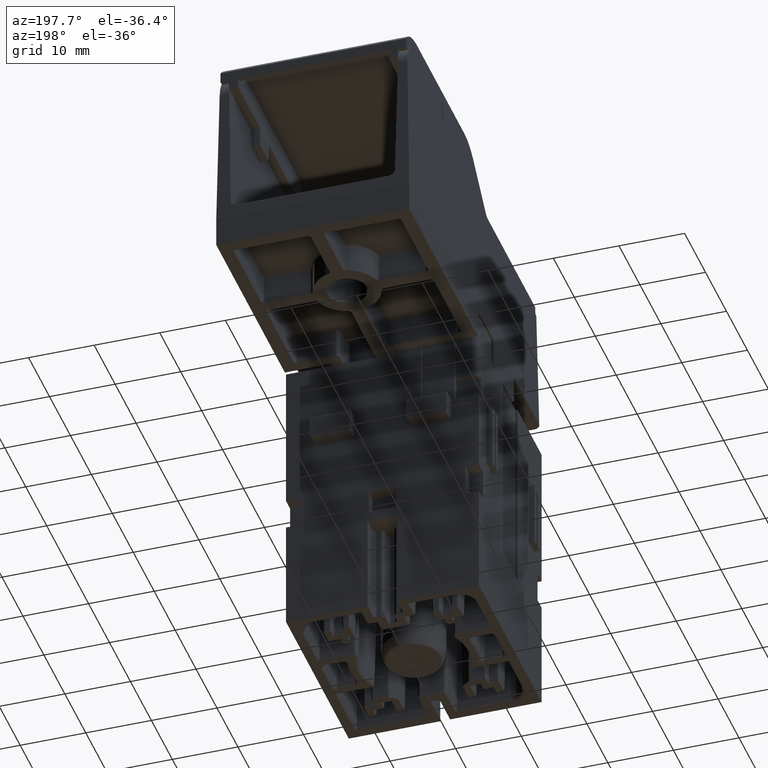
[diagram: clean part render]
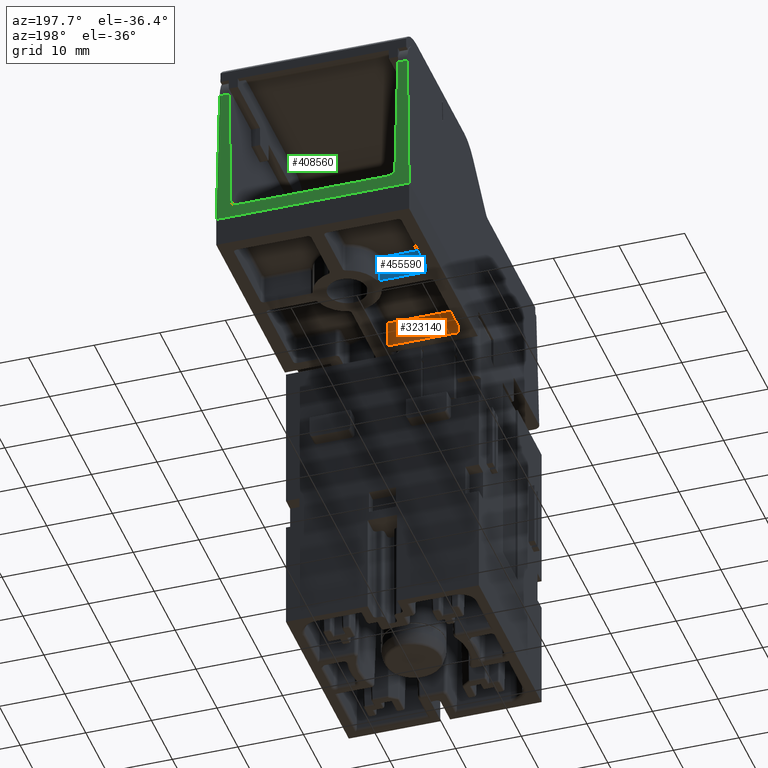
[diagram: same view with three faces highlighted in distinct colors, each labeled with its STEP entity id]
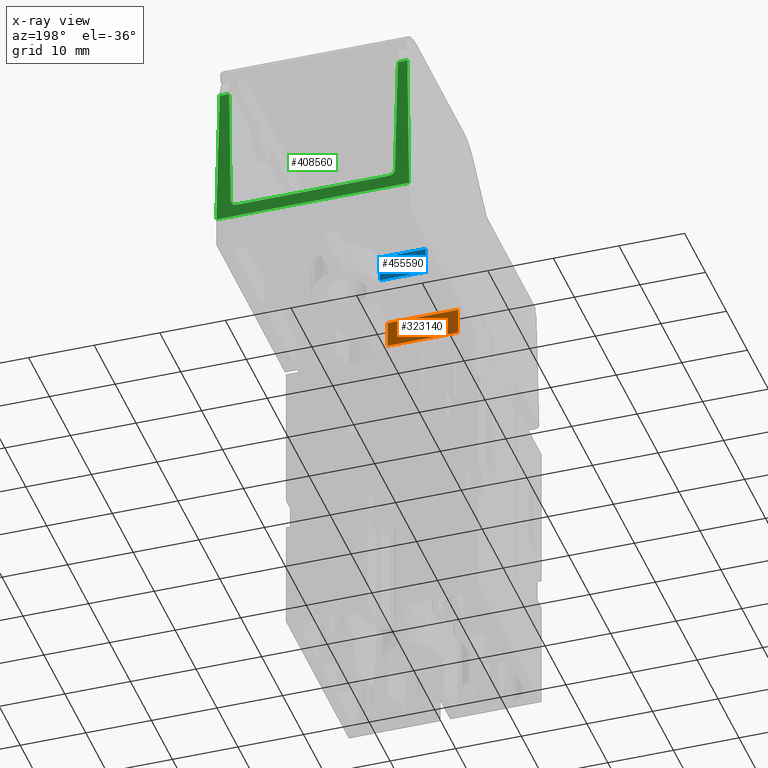
[diagram: x-ray of the same camera — body ghosted, the three highlighted faces saturated]
A machine part, auxiliary view with three faces highlighted in distinct colors.
The next image is the same camera in x-ray (body ghosted, the three faces saturated) — at least one of them is partly hidden behind the body in this view.
Their STEP definitions:

[orange] entity #323140 — the highlighted planar face has unit normal (-0, 1, -0).
#286740=CARTESIAN_POINT('',(126.959783000015,57.2000000000071,
31.5000000000003));
#286750=VERTEX_POINT('',#286740);
#288610=CARTESIAN_POINT('',(119.385828644772,57.2000000000071,
31.5000000000003));
#288620=DIRECTION('',(-1.,4.89858719658942E-16,-7.63116439681149E-31));
#288630=VECTOR('',#288620,1.);
#288640=LINE('',#288610,#288630);
#288650=CARTESIAN_POINT('',(116.209783,57.2000000000071,31.5000000000003
));
#288660=VERTEX_POINT('',#288650);
#288670=EDGE_CURVE('',#286750,#288660,#288640,.T.);
#322840=CARTESIAN_POINT('',(119.385828644772,57.2000000000071,
35.6000000000008));
#322850=DIRECTION('',(4.89858719658942E-16,1.,-2.161723853515E-15));
#322860=DIRECTION('',(-1.,4.89858719658942E-16,-6.64508826528523E-31));
#322870=AXIS2_PLACEMENT_3D('',#322840,#322850,#322860);
#322880=PLANE('',#322870);
#322890=CARTESIAN_POINT('',(126.959783000015,57.2000000000071,
31.0000000000003));
#322900=DIRECTION('',(2.75880635163948E-45,2.161723853515E-15,1.));
#322910=VECTOR('',#322900,1.);
#322920=LINE('',#322890,#322910);
#322930=CARTESIAN_POINT('',(126.959783000015,57.2000000000071,
35.6000000000007));
#322940=VERTEX_POINT('',#322930);
#322950=EDGE_CURVE('',#286750,#322940,#322920,.T.);
#322960=ORIENTED_EDGE('',*,*,#322950,.F.);
#322970=CARTESIAN_POINT('',(119.385828644772,57.2000000000071,
35.6000000000007));
#322980=DIRECTION('',(1.,-4.89858719658942E-16,1.06044593939015E-30));
#322990=VECTOR('',#322980,1.);
#323000=LINE('',#322970,#322990);
#323010=CARTESIAN_POINT('',(116.209783,57.2000000000071,35.6000000000007
));
#323020=VERTEX_POINT('',#323010);
#323030=EDGE_CURVE('',#323020,#322940,#323000,.T.);
#323040=ORIENTED_EDGE('',*,*,#323030,.T.);
#323050=CARTESIAN_POINT('',(116.209783,57.2000000000071,31.0000000000003
));
#323060=DIRECTION('',(2.75880635163948E-45,2.161723853515E-15,1.));
#323070=VECTOR('',#323060,1.);
#323080=LINE('',#323050,#323070);
#323090=EDGE_CURVE('',#288660,#323020,#323080,.T.);
#323100=ORIENTED_EDGE('',*,*,#323090,.T.);
#323110=ORIENTED_EDGE('',*,*,#288670,.T.);
#323120=EDGE_LOOP('',(#323110,#323100,#323040,#322960));
#323130=FACE_OUTER_BOUND('',#323120,.T.);
#323140=ADVANCED_FACE('',(#323130),#322880,.T.);

[blue] entity #455590 — the highlighted planar face has unit normal (-0, -1, 0).
#267030=CARTESIAN_POINT('',(120.001285622129,72.7999999999993,
31.5000000000002));
#267040=VERTEX_POINT('',#267030);
#267070=CARTESIAN_POINT('',(120.001285622129,72.7999999999993,
35.6000000000007));
#267080=DIRECTION('',(3.94430452610506E-31,2.16172385351495E-15,1.));
#267090=VECTOR('',#267080,1.);
#267100=LINE('',#267070,#267090);
#267110=CARTESIAN_POINT('',(120.001285622129,72.7999999999993,
35.6000000000007));
#267120=VERTEX_POINT('',#267110);
#267130=EDGE_CURVE('',#267040,#267120,#267100,.T.);
#286420=CARTESIAN_POINT('',(126.959783000015,72.7999999999993,
31.5000000000002));
#286430=VERTEX_POINT('',#286420);
#289550=CARTESIAN_POINT('',(119.385828644772,72.7999999999993,
31.5000000000002));
#289560=DIRECTION('',(1.,8.33970347136256E-17,-4.39126343778504E-31));
#289570=VECTOR('',#289560,1.);
#289580=LINE('',#289550,#289570);
#289590=EDGE_CURVE('',#267040,#286430,#289580,.T.);
#409750=CARTESIAN_POINT('',(119.385828644772,72.7999999999993,
35.6000000000007));
#409760=DIRECTION('',(1.,8.33970347136256E-17,-1.84961216390201E-31));
#409770=VECTOR('',#409760,1.);
#409780=LINE('',#409750,#409770);
#409790=CARTESIAN_POINT('',(126.959783000015,72.7999999999993,
35.6000000000007));
#409800=VERTEX_POINT('',#409790);
#409810=EDGE_CURVE('',#267120,#409800,#409780,.T.);
#455430=CARTESIAN_POINT('',(119.385828644772,72.7999999999993,
35.6000000000007));
#455440=DIRECTION('',(8.33970347136256E-17,-1.,2.161723853515E-15));
#455450=DIRECTION('',(1.,8.33970347136256E-17,-5.74711811863365E-31));
#455460=AXIS2_PLACEMENT_3D('',#455430,#455440,#455450);
#455470=PLANE('',#455460);
#455480=ORIENTED_EDGE('',*,*,#409810,.T.);
#455490=ORIENTED_EDGE('',*,*,#267130,.T.);
#455500=ORIENTED_EDGE('',*,*,#289590,.F.);
#455510=CARTESIAN_POINT('',(126.959783000015,72.7999999999993,
31.0000000000002));
#455520=DIRECTION('',(-2.75880635163948E-45,-2.161723853515E-15,-1.));
#455530=VECTOR('',#455520,1.);
#455540=LINE('',#455510,#455530);
#455550=EDGE_CURVE('',#409800,#286430,#455540,.T.);
#455560=ORIENTED_EDGE('',*,*,#455550,.T.);
#455570=EDGE_LOOP('',(#455560,#455500,#455490,#455480));
#455580=FACE_OUTER_BOUND('',#455570,.T.);
#455590=ADVANCED_FACE('',(#455580),#455470,.F.);

[green] entity #408560 — the highlighted planar face has unit normal (0, 0.9998, 0.0175).
#268020=CARTESIAN_POINT('',(129.409783000015,88.2999999999993,31.));
#268030=VERTEX_POINT('',#268020);
#268060=CARTESIAN_POINT('',(129.409783000015,88.2999999999993,
31.0000000000002));
#268070=DIRECTION('',(0.0174497491606827,0.0174497491606849,
0.999695459881888));
#268080=VECTOR('',#268070,1.);
#268090=LINE('',#268060,#268080);
#268100=CARTESIAN_POINT('',(129.017266381186,87.9074833811696,
8.51273796781381));
#268110=VERTEX_POINT('',#268100);
#268120=EDGE_CURVE('',#268110,#268030,#268090,.T.);
#323270=CARTESIAN_POINT('',(102.244693129871,88.2999999999993,
31.0000000000002));
#323280=DIRECTION('',(-0.0174497491606827,-0.0174497491606849,
-0.999695459881888));
#323290=VECTOR('',#323280,1.);
#323300=LINE('',#323270,#323290);
#323310=CARTESIAN_POINT('',(102.192632567974,88.2479394381022,
28.0174524064375));
#323320=VERTEX_POINT('',#323310);
#323330=CARTESIAN_POINT('',(101.852176511042,87.9074833811696,
8.51273796781381));
#323340=VERTEX_POINT('',#323330);
#323350=EDGE_CURVE('',#323320,#323340,#323300,.T.);
#346400=CARTESIAN_POINT('',(127.226933432041,88.2479394381022,
28.0174524064375));
#346410=VERTEX_POINT('',#346400);
#346440=CARTESIAN_POINT('',(126.227085736884,88.2476348052147,
28.0000000000002));
#346450=DIRECTION('',(-1.04178630140374E-16,0.999847695156391,
-0.0174524064372857));
#346460=DIRECTION('',(1.18984900972848E-15,0.0174524064372857,
0.999847695156391));
#346470=AXIS2_PLACEMENT_3D('',#346440,#346450,#346460);
#346480=ELLIPSE('',#346470,1.00015232804391,1.);
#346490=CARTESIAN_POINT('',(126.227085736884,88.2650898701429,
29.0000000000002));
#346500=VERTEX_POINT('',#346490);
#346510=EDGE_CURVE('',#346500,#346410,#346480,.T.);
#350750=CARTESIAN_POINT('',(119.385828644772,87.9074833811696,
8.51273796781384));
#350760=DIRECTION('',(1.,1.0419449946732E-16,-6.19670187514062E-31));
#350770=VECTOR('',#350760,1.);
#350780=LINE('',#350750,#350770);
#350790=CARTESIAN_POINT('',(100.402299618845,87.9074833811696,
8.51273796781383));
#350800=VERTEX_POINT('',#350790);
#350810=EDGE_CURVE('',#350800,#323340,#350780,.T.);
#357500=CARTESIAN_POINT('',(103.192480263131,88.2650898701429,
29.0000000000002));
#357510=VERTEX_POINT('',#357500);
#357540=CARTESIAN_POINT('',(103.192480263131,88.2476348052147,
28.0000000000002));
#357550=DIRECTION('',(-1.04178630140374E-16,0.999847695156391,
-0.0174524064372857));
#357560=DIRECTION('',(5.96838972348848E-15,0.0174524064372857,
0.999847695156391));
#357570=AXIS2_PLACEMENT_3D('',#357540,#357550,#357560);
#357580=ELLIPSE('',#357570,1.00015232804391,1.);
#357590=EDGE_CURVE('',#323320,#357510,#357580,.T.);
#359840=CARTESIAN_POINT('',(119.385828644772,88.2650898701429,
29.0000000000002));
#359850=DIRECTION('',(1.,1.0419449946732E-16,-6.19670187514062E-31));
#359860=VECTOR('',#359850,1.);
#359870=LINE('',#359840,#359860);
#359880=EDGE_CURVE('',#357510,#346500,#359870,.T.);
#404660=CARTESIAN_POINT('',(100.009783000016,88.2999999999993,
31.0000000000002));
#404670=DIRECTION('',(0.0174497491606827,-0.0174497491606848,
-0.999695459881888));
#404680=VECTOR('',#404670,1.);
#404690=LINE('',#404660,#404680);
#404700=CARTESIAN_POINT('',(100.009783000016,88.2999999999993,
31.0000000000003));
#404710=VERTEX_POINT('',#404700);
#404720=EDGE_CURVE('',#404710,#350800,#404690,.T.);
#408220=CARTESIAN_POINT('',(119.385828644772,88.2999999999993,
31.0000000000001));
#408230=DIRECTION('',(-1.04178630140374E-16,0.999847695156391,
-0.0174524064372857));
#408240=DIRECTION('',(-1.,-1.0419449946732E-16,6.20440559491817E-31));
#408250=AXIS2_PLACEMENT_3D('',#408220,#408230,#408240);
#408260=PLANE('',#408250);
#408270=ORIENTED_EDGE('',*,*,#346510,.F.);
#408280=CARTESIAN_POINT('',(127.174872870143,88.2999999999993,
31.0000000000002));
#408290=DIRECTION('',(0.0174497491606827,-0.0174497491606848,
-0.999695459881888));
#408300=VECTOR('',#408290,1.);
#408310=LINE('',#408280,#408300);
#408320=CARTESIAN_POINT('',(127.567389488973,87.9074833811696,
8.51273796781384));
#408330=VERTEX_POINT('',#408320);
#408340=EDGE_CURVE('',#346410,#408330,#408310,.T.);
#408350=ORIENTED_EDGE('',*,*,#408340,.F.);
#408360=CARTESIAN_POINT('',(119.385828644772,87.9074833811696,
8.51273796781384));
#408370=DIRECTION('',(-1.,-1.0419449946732E-16,6.19670187514062E-31));
#408380=VECTOR('',#408370,1.);
#408390=LINE('',#408360,#408380);
#408400=EDGE_CURVE('',#268110,#408330,#408390,.T.);
#408410=ORIENTED_EDGE('',*,*,#408400,.T.);
#408420=ORIENTED_EDGE('',*,*,#268120,.F.);
#408430=CARTESIAN_POINT('',(119.385828644772,88.2999999999993,
31.000000000001));
#408440=DIRECTION('',(-1.,2.07974647537092E-17,7.16078483437512E-15));
#408450=VECTOR('',#408440,1.);
#408460=LINE('',#408430,#408450);
#408470=EDGE_CURVE('',#268030,#404710,#408460,.T.);
#408480=ORIENTED_EDGE('',*,*,#408470,.F.);
#408490=ORIENTED_EDGE('',*,*,#404720,.F.);
#408500=ORIENTED_EDGE('',*,*,#350810,.F.);
#408510=ORIENTED_EDGE('',*,*,#323350,.T.);
#408520=ORIENTED_EDGE('',*,*,#357590,.F.);
#408530=ORIENTED_EDGE('',*,*,#359880,.F.);
#408540=EDGE_LOOP('',(#408530,#408520,#408510,#408500,#408490,#408480,
#408420,#408410,#408350,#408270));
#408550=FACE_OUTER_BOUND('',#408540,.T.);
#408560=ADVANCED_FACE('',(#408550),#408260,.T.);